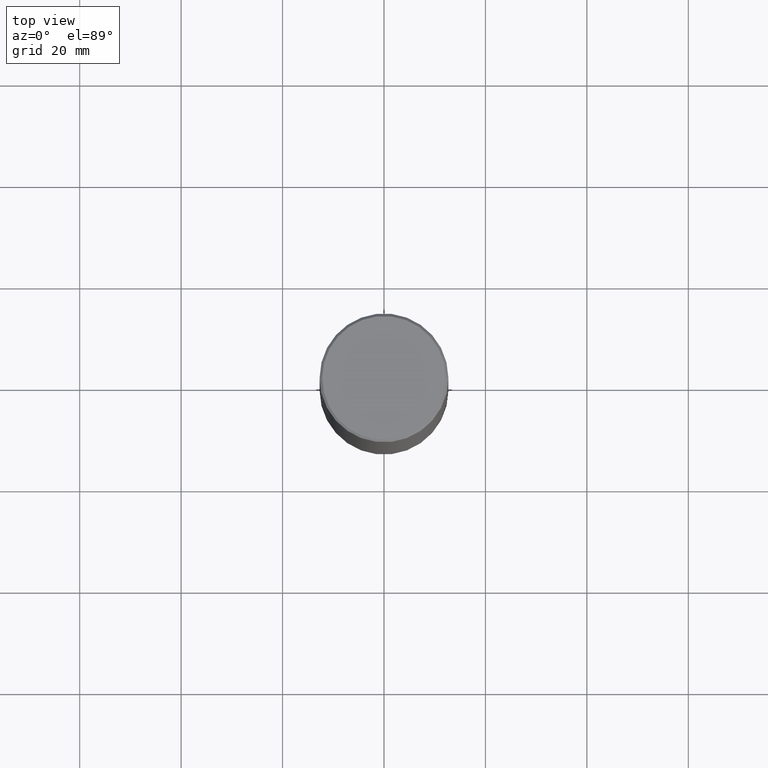
[diagram: clean part render]
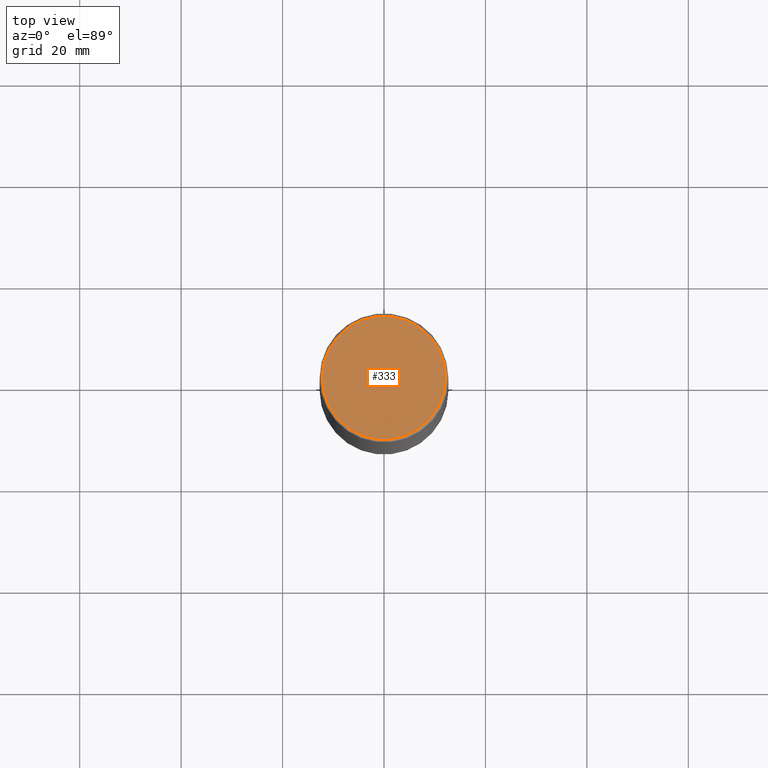
[diagram: same view with one face highlighted and labeled with its STEP entity id]
A machine part, top view. The second image highlights one B-rep face of the part: STEP entity #333.
In plain terms, the highlighted planar face has unit normal (0, -0, -1).
Its self-contained STEP definition (entity closure, byte-faithful):
#1 = DIRECTION ( 'NONE',  ( 1.000000000000000000, -6.982962677686267499E-15, 4.876036955247132767E-29 ) ) ;
#11 = CARTESIAN_POINT ( 'NONE',  ( -0.4799999999999996492, 3.386736898677836830E-15, 1.280553747027767124E-17 ) ) ;
#46 = DIRECTION ( 'NONE',  ( 2.438088387897960049E-29, -3.491481338843145188E-15, -1.000000000000000000 ) ) ;
#66 = CIRCLE ( 'NONE', #290, 0.4799999999999996492 ) ;
#101 = EDGE_CURVE ( 'NONE', #245, #273, #66, .T. ) ;
#122 = AXIS2_PLACEMENT_3D ( 'NONE', #160, #336, #163 ) ;
#137 = FACE_OUTER_BOUND ( 'NONE', #204, .T. ) ;
#160 = CARTESIAN_POINT ( 'NONE',  ( -3.131554243005659264E-46, 4.471029511141341874E-32, 1.280553747030123384E-17 ) ) ;
#163 = DIRECTION ( 'NONE',  ( 1.000000000000000000, -6.982962677686267499E-15, 4.876036955247132767E-29 ) ) ;
#204 = EDGE_LOOP ( 'NONE', ( #332, #365 ) ) ;
#214 = CIRCLE ( 'NONE', #122, 0.4799999999999996492 ) ;
#239 = AXIS2_PLACEMENT_3D ( 'NONE', #305, #46, #312 ) ;
#245 = VERTEX_POINT ( 'NONE', #331 ) ;
#249 = DIRECTION ( 'NONE',  ( -2.445468806185136597E-29, 3.491481338843145583E-15, 1.000000000000000000 ) ) ;
#273 = VERTEX_POINT ( 'NONE', #11 ) ;
#290 = AXIS2_PLACEMENT_3D ( 'NONE', #313, #249, #1 ) ;
#305 = CARTESIAN_POINT ( 'NONE',  ( 3.351822085289405181E-15, 0.4799999999999996492, -1.669508273909558064E-15 ) ) ;
#312 = DIRECTION ( 'NONE',  ( -1.000000000000000000, 6.982962677686265922E-15, -4.876176775795935793E-29 ) ) ;
#313 = CARTESIAN_POINT ( 'NONE',  ( -3.131554243005659264E-46, 4.471029511141341874E-32, 1.280553747030123384E-17 ) ) ;
#331 = CARTESIAN_POINT ( 'NONE',  ( 0.4799999999999996492, -3.396558832296480127E-15, 1.280553747032483033E-17 ) ) ;
#332 = ORIENTED_EDGE ( 'NONE', *, *, #344, .T. ) ;
#333 = ADVANCED_FACE ( 'NONE', ( #137 ), #334, .F. ) ;
#334 = PLANE ( 'NONE',  #239 ) ;
#336 = DIRECTION ( 'NONE',  ( -2.445468806185136597E-29, 3.491481338843145583E-15, 1.000000000000000000 ) ) ;
#344 = EDGE_CURVE ( 'NONE', #273, #245, #214, .T. ) ;
#365 = ORIENTED_EDGE ( 'NONE', *, *, #101, .T. ) ;